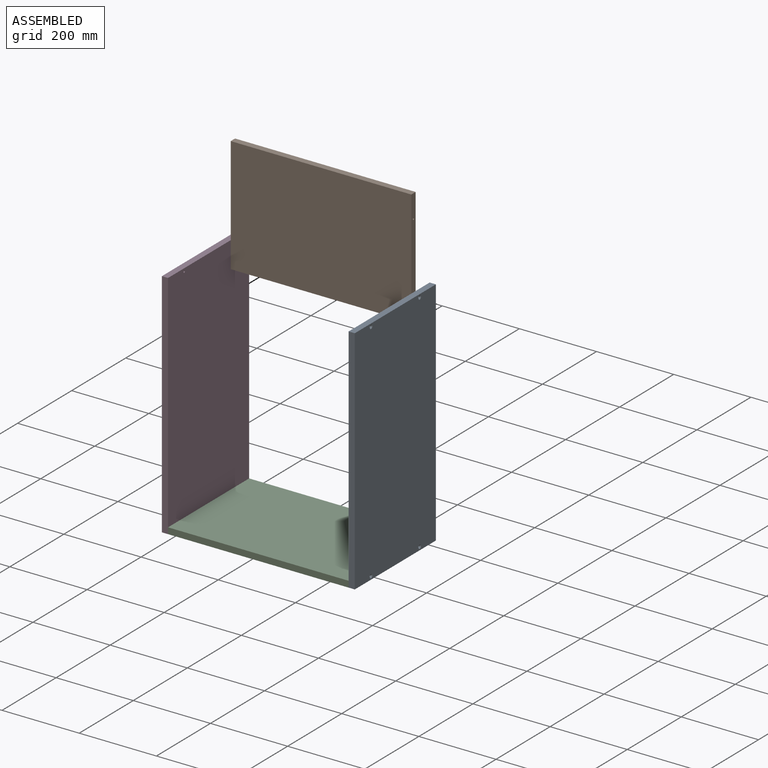
[diagram: assembled view]
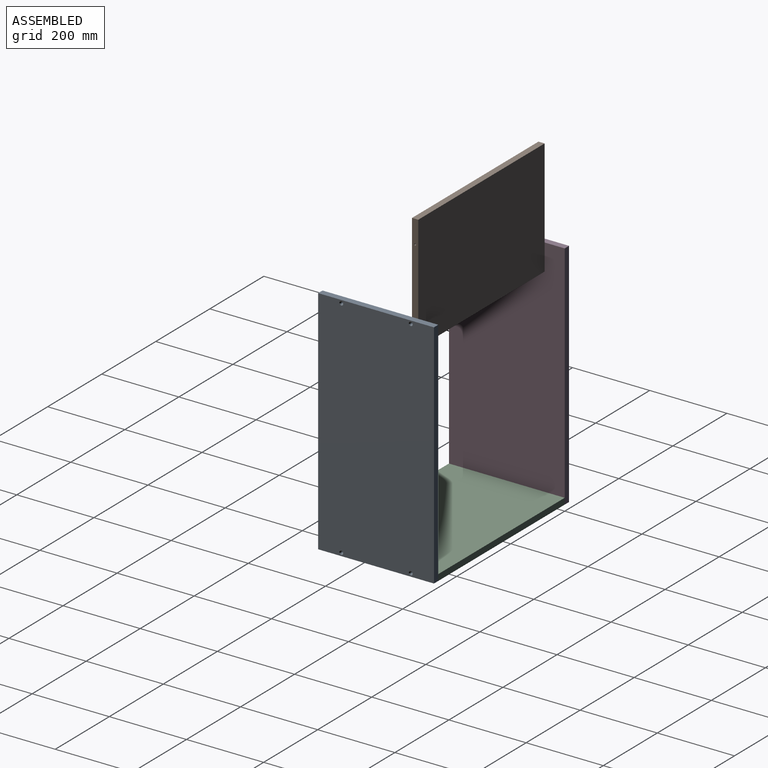
[diagram: assembled view, second angle]
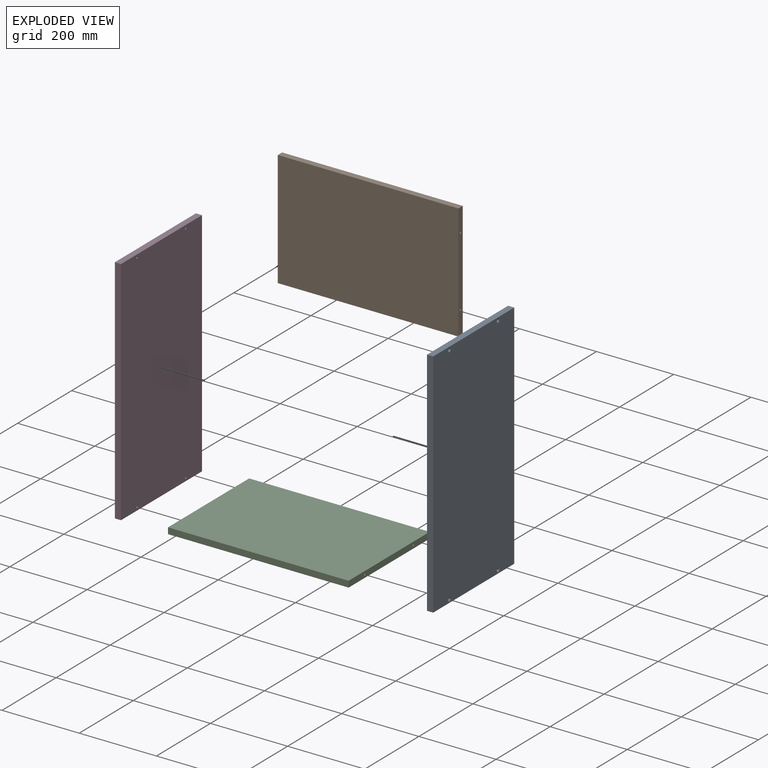
[diagram: exploded view]
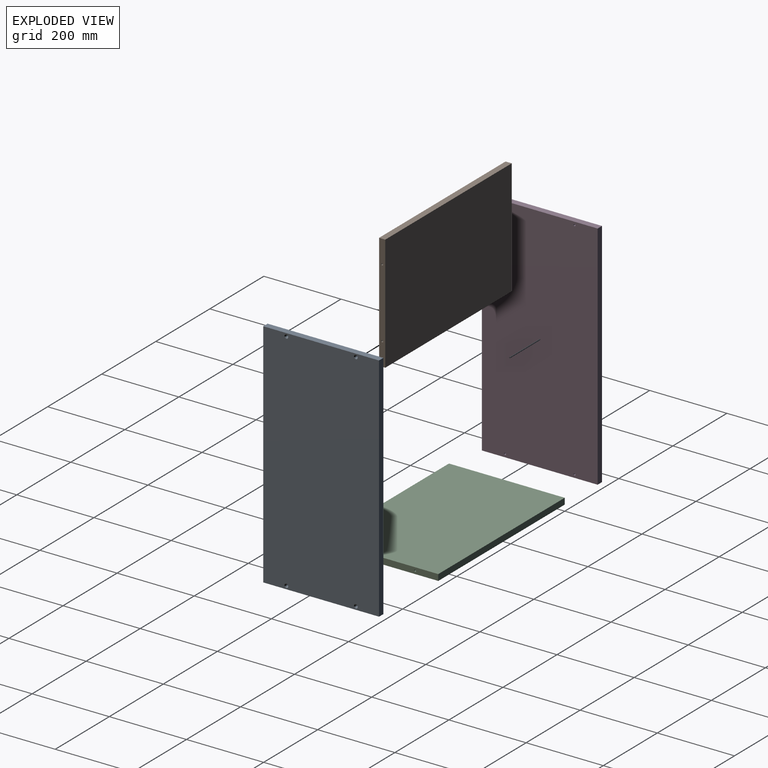
[diagram: exploded view, second angle]
ASSEMBLY  parts=4 mates=2
PART A: 14 faces, bbox 300x600x16 mm
  f0: plane 300x16mm, normal (0,1,0), area 4800mm2, adj f1,f3,f4,f5
  f1: plane 600x16mm, normal (-1,0,0), area 9600mm2, adj f0,f2,f4,f5
  f2: plane 300x16mm, normal (0,-1,0), area 4800mm2, adj f1,f3,f4,f5
  f3: plane 600x16mm, normal (1,0,0), area 9600mm2, adj f0,f2,f4,f5
  f4: plane 600x300mm, normal (0,0,1), area 179685.8mm2, adj f0,f1,f2,f3,f7,f9,f11,f13
  f5: plane 600x300mm, normal (0,0,-1), area 179921.5mm2, adj f0,f1,f2,f3,f6,f8,f10,f12
  f6: cylinder r=2.5mm len=13.5mm, axis (0,0,1), area 212.1mm2, adj f5,f7
  f7: cone r=2.5mm half-angle=45deg, axis (0,0,1), area 83.3mm2, adj f4,f6
  f8: cylinder r=2.5mm len=13.5mm, axis (0,0,1), area 212.1mm2, adj f5,f9
  f9: cone r=2.5mm half-angle=45deg, axis (0,0,1), area 83.3mm2, adj f4,f8
  f10: cylinder r=2.5mm len=13.5mm, axis (0,0,1), area 212.1mm2, adj f5,f11
  f11: cone r=2.5mm half-angle=45deg, axis (0,0,1), area 83.3mm2, adj f4,f10
  f12: cylinder r=2.5mm len=13.5mm, axis (0,0,1), area 212.1mm2, adj f5,f13
  f13: cone r=2.5mm half-angle=45deg, axis (0,0,1), area 83.3mm2, adj f4,f12
PART B: 14 faces, bbox 468x300x16 mm
  f0: plane 468x16mm, normal (0,1,0), area 7488mm2, adj f1,f3,f4,f5
  f1: plane 300x16mm, normal (-1,0,0), area 4760.7mm2, adj f0,f2,f4,f5,f11,f13
  f2: plane 468x16mm, normal (0,-1,0), area 7488mm2, adj f1,f3,f4,f5
  f3: plane 300x16mm, normal (1,0,0), area 4760.7mm2, adj f0,f2,f4,f5,f7,f9
  f4: plane 468x300mm, normal (0,0,1), area 140400mm2, adj f0,f1,f2,f3
  f5: plane 468x300mm, normal (0,0,-1), area 140400mm2, adj f0,f1,f2,f3
  f6: cone r=0mm half-angle=59deg, axis (1,0,0), area 22.9mm2, adj f7
  f7: cylinder r=2.5mm len=60mm, axis (1,0,0), area 942.5mm2, adj f3,f6
  f8: cone r=0mm half-angle=59deg, axis (1,0,0), area 22.9mm2, adj f9
  f9: cylinder r=2.5mm len=60mm, axis (1,0,0), area 942.5mm2, adj f3,f8
  f10: cone r=0mm half-angle=59deg, axis (-1,0,0), area 22.9mm2, adj f11
  f11: cylinder r=2.5mm len=60mm, axis (-1,0,0), area 942.5mm2, adj f1,f10
  f12: cone r=0mm half-angle=59deg, axis (-1,0,0), area 22.9mm2, adj f13
  f13: cylinder r=2.5mm len=60mm, axis (-1,0,0), area 942.5mm2, adj f1,f12
PART C: same geometry as B
PART D: same geometry as A
PLACE A rot(axis=(0.58,0.58,0.58),120deg) t=(468,-1208.15,-882.38)mm
PLACE B rot(axis=(-1,0,0),90deg) t=(0,-68,532)mm
PLACE C at identity fixed
PLACE D rot(axis=(-0.58,-0.58,0.58),120deg) t=(0,-1208.15,1482.38)mm
MATE fastened A.f6 <-> C.f8  axis (1,0,0) through (468,-60,8)mm
MATE fastened D.f12 <-> C.f8  axis (-1,0,0) through (0,-60,8)mm
